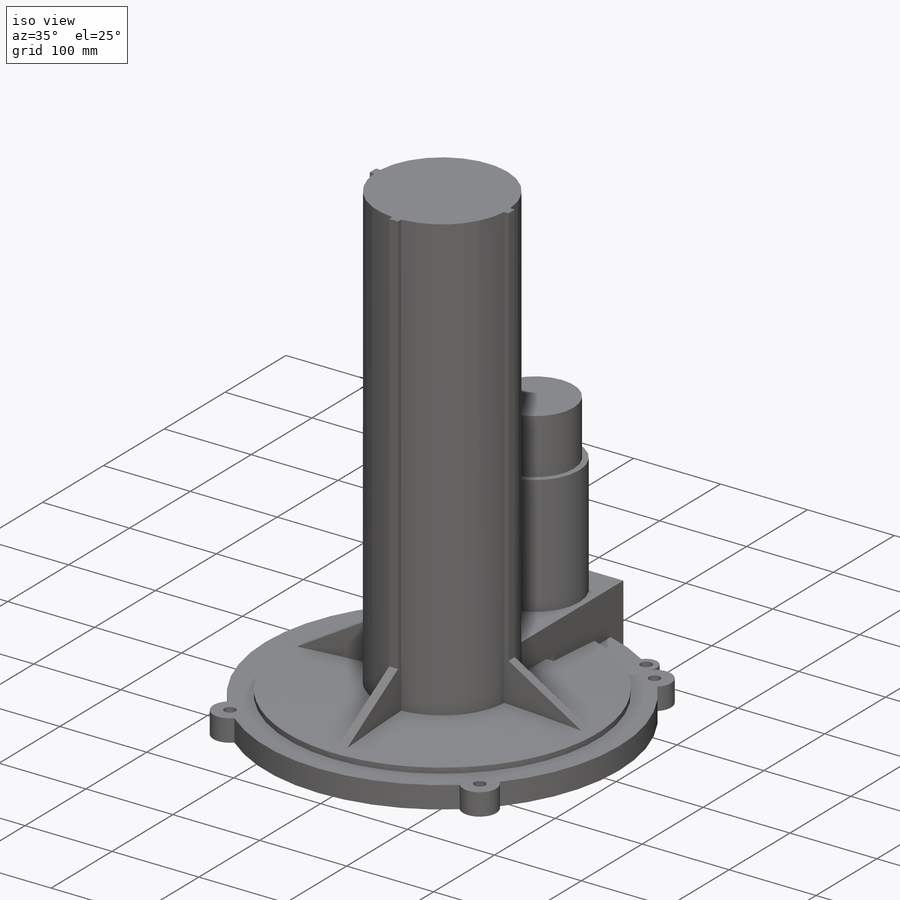
[diagram: iso view]
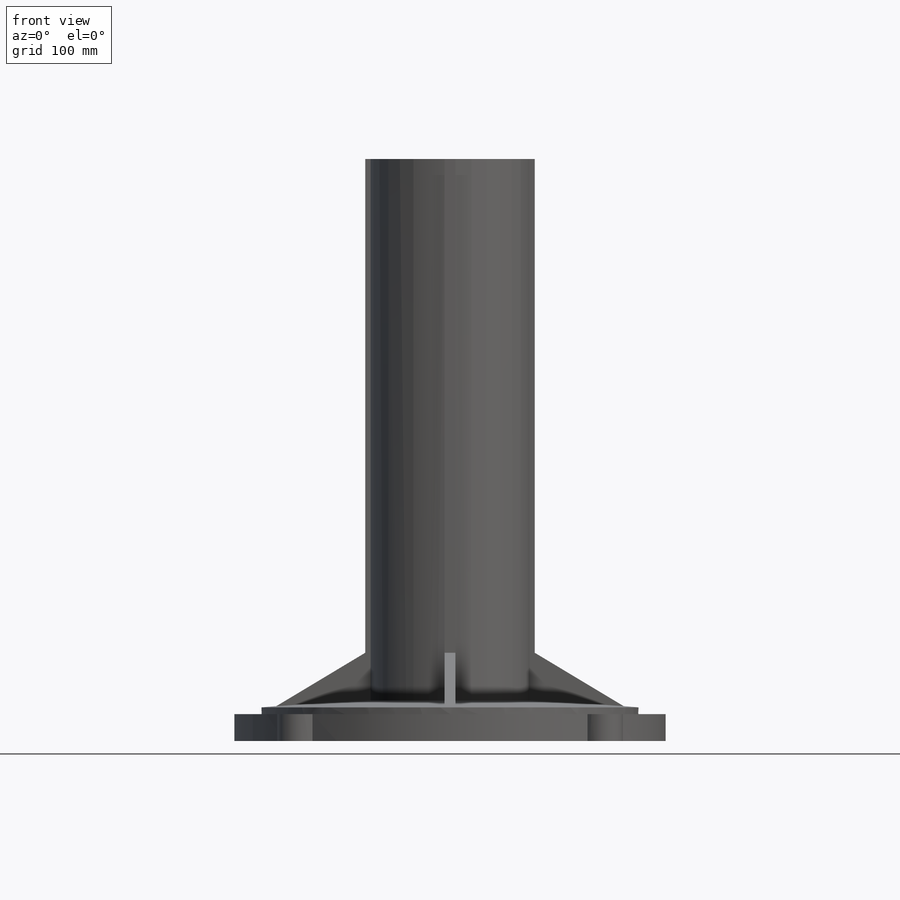
[diagram: front view]
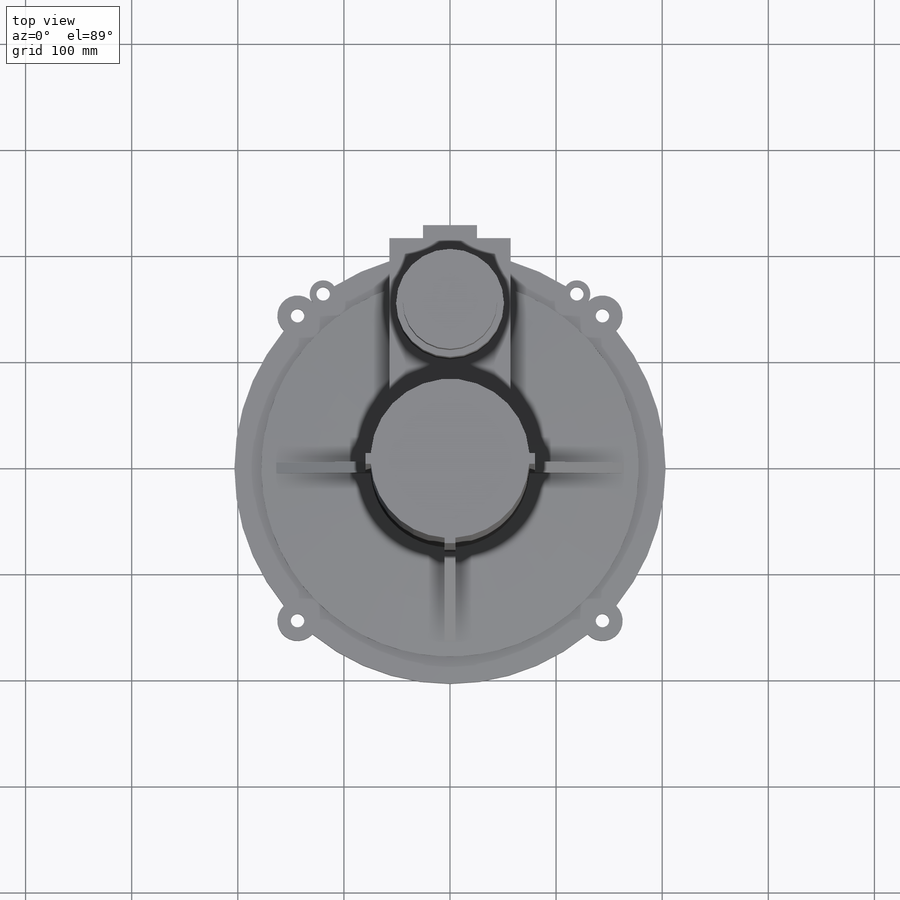
[diagram: top view]
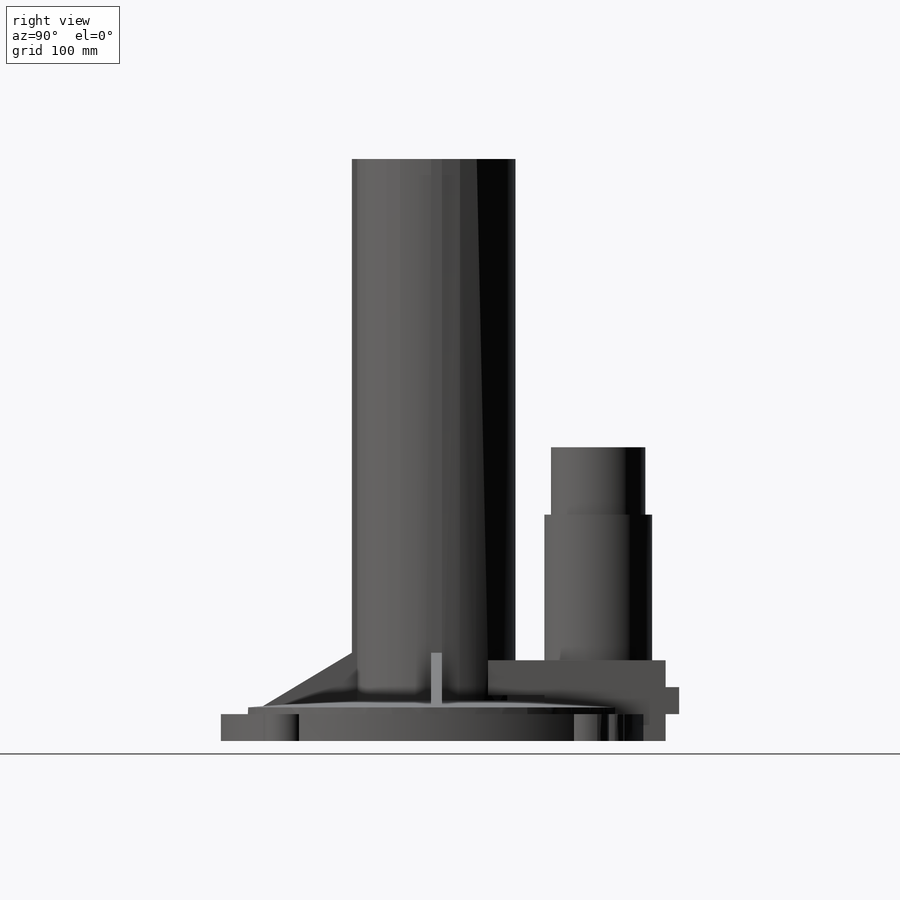
[diagram: right view]
SOLIDWORKS PART (.sldprt)
format: sldprt  version: not decoded by parser v0  size: 382,976 bytes
history: native  units: mm
features: sketch x14, extrude x9, plane x4, cut_extrude x4, material x1, revolve x1, mirror x1 (+8 scaffold rows collapsed)
feature tree (42):
  scaffold x8  (default folders/planes/origin — collapsed)
  material  "Material <sin especificar>"
  plane  "Alzado"
  plane  "Planta"
  plane  "Vista lateral"
  sketch  "Croquis1"  dims[c1.D1=406.4mm c1.D2=38.1mm c1.D3=38.1mm c2.D2=38.1mm c2.D3=25.4mm c2.D4=203.2mm c3.D4=45.0deg c3.D5=31.75mm]
  extrude  "Saliente-Extruir1"  Depth=25.4mm
  sketch  "Croquis2"  dims[D1=12.7mm D2=12.7mm]
  cut_extrude  "Cortar-Extruir1"  [1 undecoded]
  sketch  "Croquis4"  dims[D1=177.8mm D2=6.35mm D3=74.93mm D4=12.7mm D5=10.16mm]
  revolve  "Revolución1"  Angle=360deg
  sketch  "Croquis5"  dims[D1=149.86mm]
  extrude  "Saliente-Extruir4"  Depth=510.54mm
  plane  "Plano1"  Offset=76.2mm
  sketch  "Croquis6"  dims[D1=215.9mm D2=114.3mm]
  extrude  "Saliente-Extruir6"  Depth=33.02mm
  sketch  "Croquis7"  dims[D1=114.3mm]
  extrude  "Saliente-Extruir7"  [1 undecoded]
  sketch  "Croquis8"  dims[D1=22.86mm]
  extrude  "Saliente-Extruir8"  [1 undecoded]
  sketch  "Croquis9"  dims[D2=101.6mm D1=63.5mm]
  extrude  "Saliente-Extruir9"  Depth=200.66mm
  sketch  "Croquis17"  dims[D1=5.08mm D2=88.9mm]
  extrude  "Saliente-Extruir15"  [1 undecoded]
  sketch  "Croquis18"  dims[D1=5.08mm]
  cut_extrude  "Cortar-Extruir2"  [1 undecoded]
  mirror  "Simetría1"
  sketch  "Croquis19"  dims[D1=5.08mm D2=88.9mm]
  extrude  "Saliente-Extruir16"  [1 undecoded]
  sketch  "Croquis20"
  cut_extrude  "Cortar-Extruir3"  [1 undecoded]
  sketch  "Croquis21"  dims[D1=88.9mm]
  cut_extrude  "Cortar-Extruir4"  Depth=63.5mm
  sketch  "Croquis22"  dims[D1=50.8mm D2=25.4mm]
  extrude  "Saliente-Extruir17"  Depth=12.7mm
decode coverage: 20 of 29 modeling features carry decoded parameters
note: 7 parameter values undecoded
summary: no parameter record found for 7 features
note: suppression state not decoded; provenance and decode notes live in map.json
